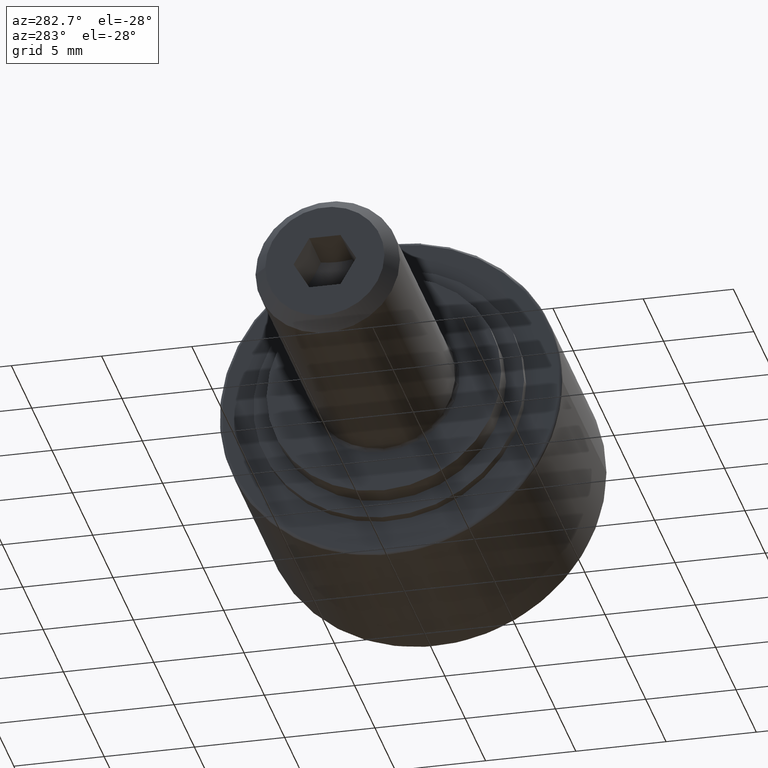
[diagram: clean part render]
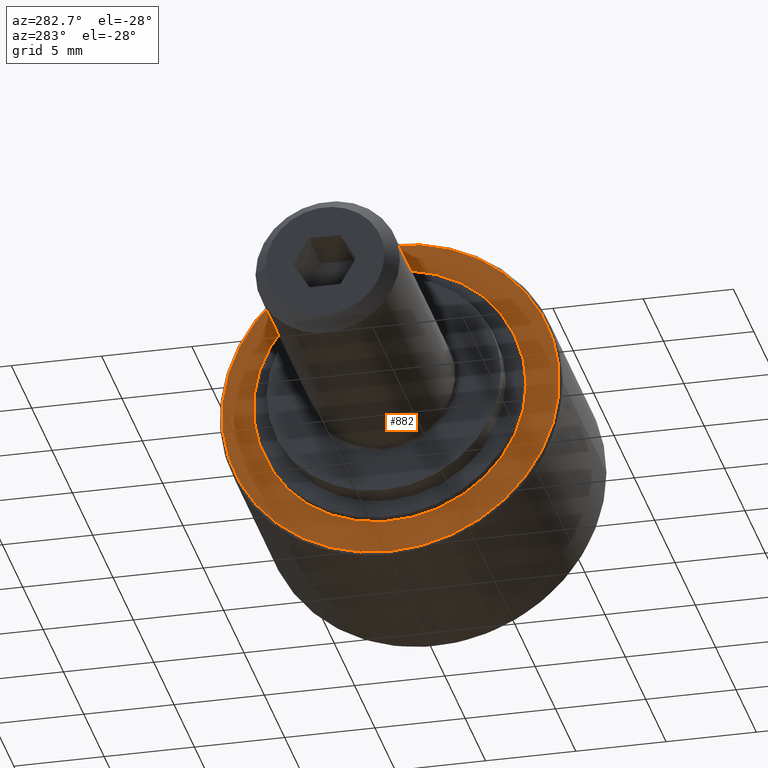
[diagram: same view with one face highlighted and labeled with its STEP entity id]
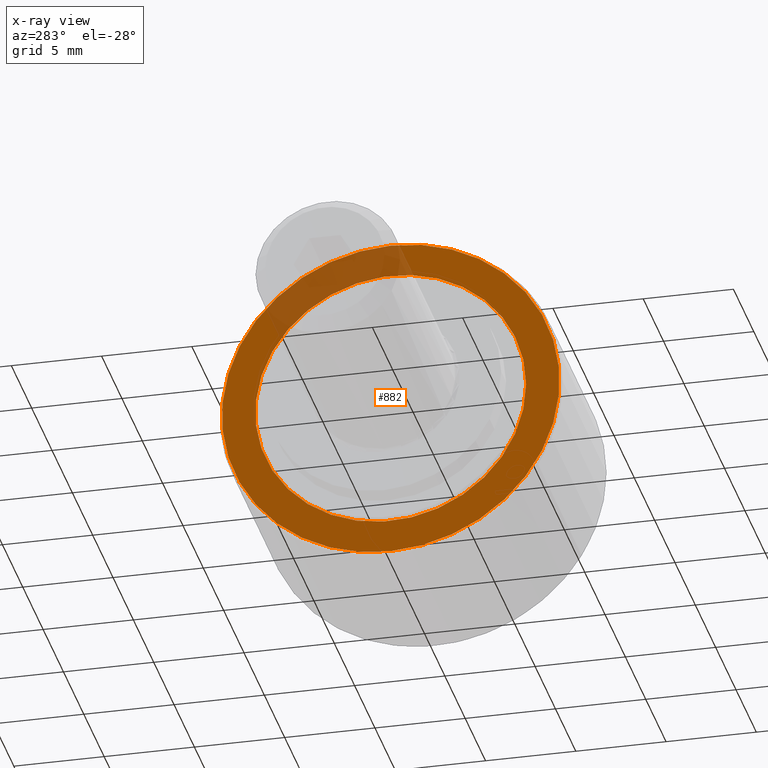
[diagram: x-ray of the same camera — body ghosted, the highlighted face saturated]
A machine part, auxiliary view. The second image highlights one B-rep face of the part: STEP entity #882.
The next image is the same camera in x-ray: the body ghosted, the highlighted face saturated — about 16% of this face is hidden behind the body in this view.
In plain terms, the highlighted planar face has unit normal (-1, 0, -0).
Its self-contained STEP definition (entity closure, byte-faithful):
#67=FACE_BOUND('',#217,.T.);
#91=PLANE('',#1046);
#152=FACE_OUTER_BOUND('',#216,.T.);
#216=EDGE_LOOP('',(#729));
#217=EDGE_LOOP('',(#730));
#366=CIRCLE('',#1045,7.5);
#367=CIRCLE('',#1047,9.35);
#447=VERTEX_POINT('',#1573);
#448=VERTEX_POINT('',#1577);
#547=EDGE_CURVE('',#447,#447,#366,.T.);
#549=EDGE_CURVE('',#448,#448,#367,.T.);
#729=ORIENTED_EDGE('',*,*,#549,.F.);
#730=ORIENTED_EDGE('',*,*,#547,.T.);
#882=ADVANCED_FACE('',(#152,#67),#91,.T.);
#1045=AXIS2_PLACEMENT_3D('',#1574,#1253,#1254);
#1046=AXIS2_PLACEMENT_3D('',#1576,#1256,#1257);
#1047=AXIS2_PLACEMENT_3D('',#1578,#1258,#1259);
#1253=DIRECTION('center_axis',(0.,3.06161699786839E-16,-1.));
#1254=DIRECTION('ref_axis',(1.,0.,0.));
#1256=DIRECTION('center_axis',(0.,-3.06161699786839E-16,1.));
#1257=DIRECTION('ref_axis',(1.,0.,0.));
#1258=DIRECTION('center_axis',(0.,3.06161699786839E-16,-1.));
#1259=DIRECTION('ref_axis',(1.,0.,0.));
#1573=CARTESIAN_POINT('',(-9.18485099360515E-16,-7.5,5.5));
#1574=CARTESIAN_POINT('Origin',(0.,-2.82697015715792E-15,5.5));
#1576=CARTESIAN_POINT('Origin',(0.,9.35,5.5));
#1577=CARTESIAN_POINT('',(9.35,-3.97201491436069E-15,5.5));
#1578=CARTESIAN_POINT('Origin',(0.,-2.82697015715792E-15,5.5));